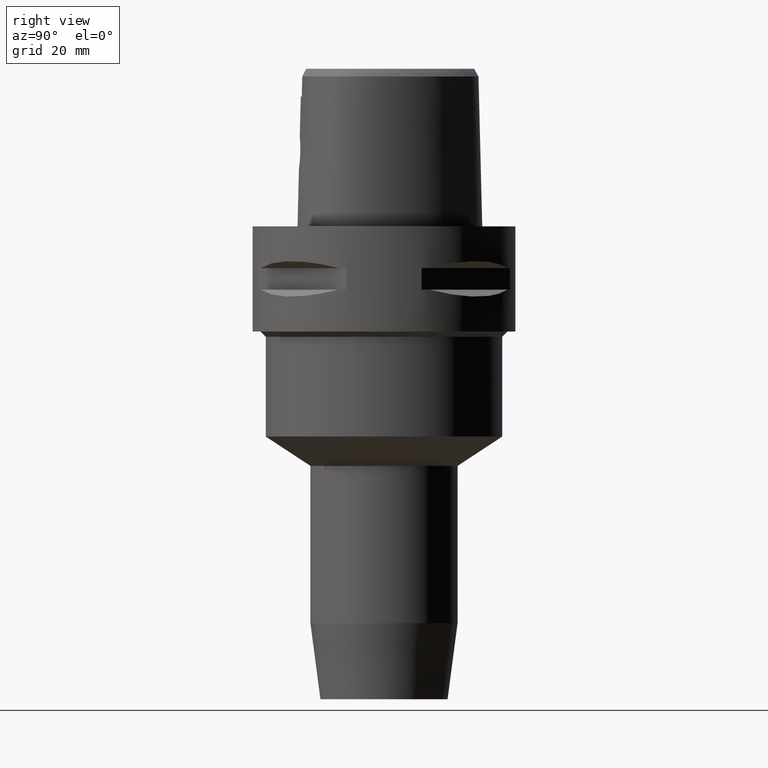
[diagram: clean part render]
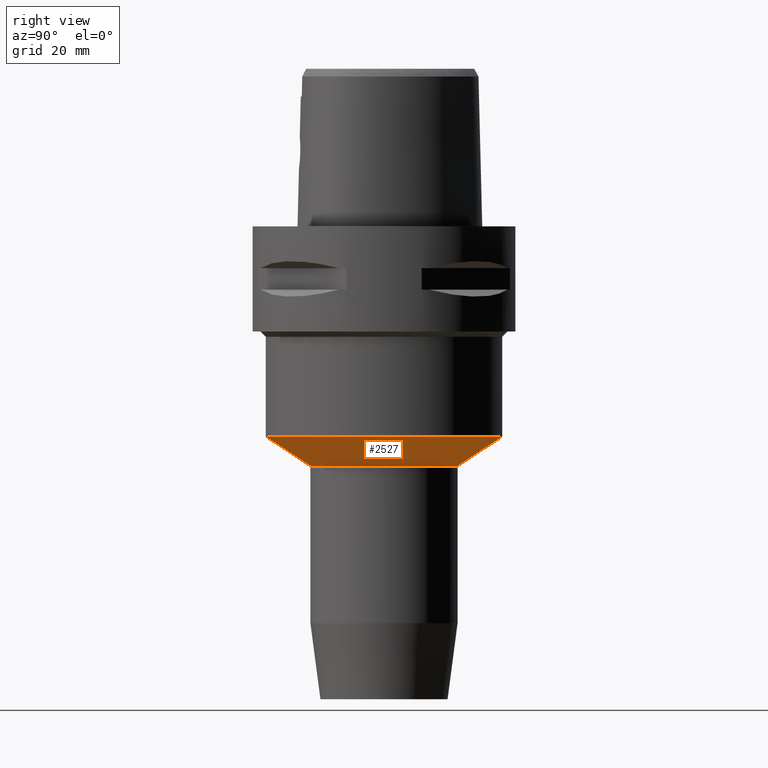
[diagram: same view with one face highlighted and labeled with its STEP entity id]
A machine part, right view. The second image highlights one B-rep face of the part: STEP entity #2527.
In plain terms, the highlighted conical surface has half-angle 56.696 deg.
Its self-contained STEP definition (entity closure, byte-faithful):
#574=DIRECTION('',(0.E0,8.357690303082E-1,-5.490811670216E-1));
#575=VECTOR('',#574,1.017027395340E1);
#576=CARTESIAN_POINT('',(0.E0,-2.25E1,-3.999969410874E1));
#577=LINE('',#576,#575);
#589=DIRECTION('',(0.E0,-8.357690303082E-1,-5.490811670216E-1));
#590=VECTOR('',#589,1.017027395340E1);
#591=CARTESIAN_POINT('',(0.E0,2.25E1,-3.999969410874E1));
#592=LINE('',#591,#590);
#596=CARTESIAN_POINT('',(0.E0,0.E0,-4.5584E1));
#597=DIRECTION('',(0.E0,0.E0,-1.E0));
#598=DIRECTION('',(0.E0,1.E0,0.E0));
#599=AXIS2_PLACEMENT_3D('',#596,#597,#598);
#604=CARTESIAN_POINT('',(0.E0,0.E0,-3.999969410874E1));
#605=DIRECTION('',(0.E0,0.E0,1.E0));
#606=DIRECTION('',(0.E0,-1.E0,0.E0));
#607=AXIS2_PLACEMENT_3D('',#604,#605,#606);
#1610=CARTESIAN_POINT('',(0.E0,2.25E1,-3.999969410874E1));
#1611=VERTEX_POINT('',#1610);
#1612=CARTESIAN_POINT('',(0.E0,-2.25E1,-3.999969410874E1));
#1613=VERTEX_POINT('',#1612);
#1614=CARTESIAN_POINT('',(0.E0,1.4E1,-4.5584E1));
#1615=VERTEX_POINT('',#1614);
#1616=CARTESIAN_POINT('',(0.E0,-1.4E1,-4.5584E1));
#1617=VERTEX_POINT('',#1616);
#2515=CARTESIAN_POINT('',(0.E0,0.E0,-4.279184705437E1));
#2516=DIRECTION('',(0.E0,0.E0,1.E0));
#2517=DIRECTION('',(0.E0,1.E0,0.E0));
#2518=AXIS2_PLACEMENT_3D('',#2515,#2516,#2517);
#2519=CONICAL_SURFACE('',#2518,1.825E1,5.6696E1);
#2520=ORIENTED_EDGE('',*,*,#2505,.T.);
#2522=ORIENTED_EDGE('',*,*,#2521,.T.);
#2523=ORIENTED_EDGE('',*,*,#2508,.F.);
#2524=ORIENTED_EDGE('',*,*,#2479,.T.);
#2525=EDGE_LOOP('',(#2520,#2522,#2523,#2524));
#2526=FACE_OUTER_BOUND('',#2525,.F.);
#600=CIRCLE('',#599,1.4E1);
#608=CIRCLE('',#607,2.25E1);
#2479=EDGE_CURVE('',#1613,#1611,#608,.T.);
#2505=EDGE_CURVE('',#1611,#1615,#592,.T.);
#2508=EDGE_CURVE('',#1613,#1617,#577,.T.);
#2521=EDGE_CURVE('',#1615,#1617,#600,.T.);
#2527=ADVANCED_FACE('',(#2526),#2519,.T.);